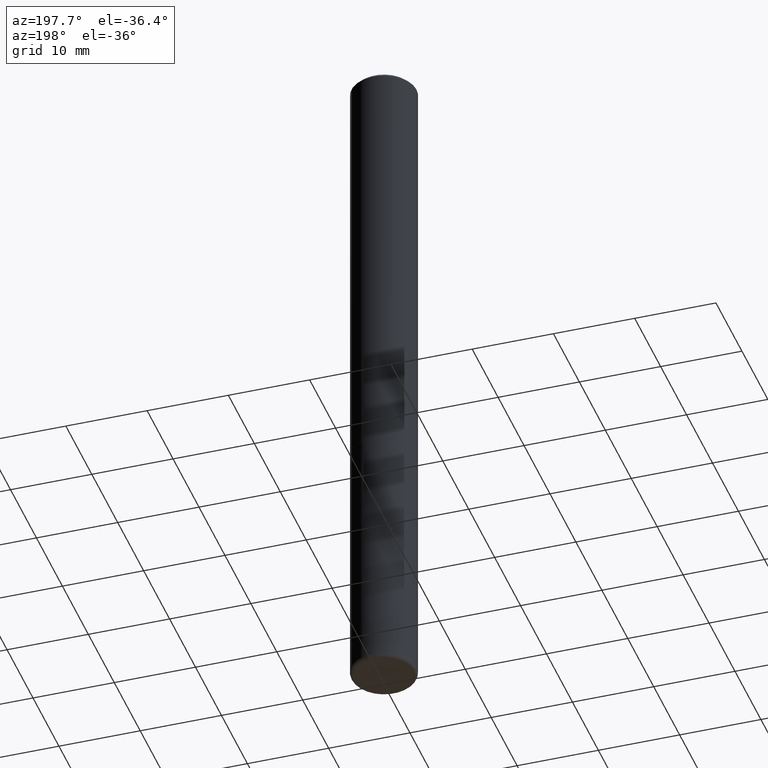
[diagram: clean part render]
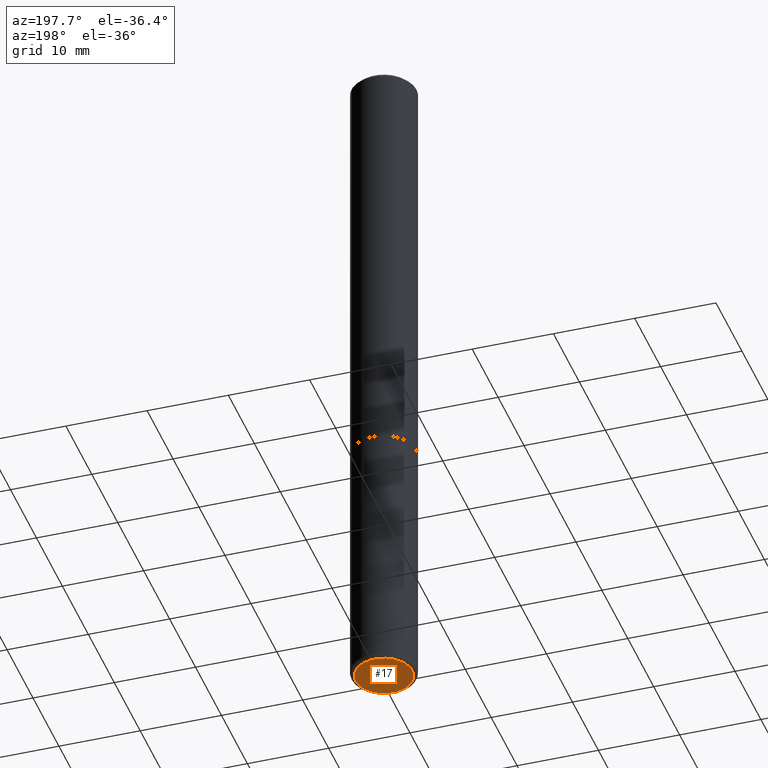
[diagram: same view with one face highlighted and labeled with its STEP entity id]
A machine part, auxiliary view. The second image highlights one B-rep face of the part: STEP entity #17.
In plain terms, the highlighted planar face has unit normal (0, -0, -1).
Its self-contained STEP definition (entity closure, byte-faithful):
#10 = DIRECTION ( 'NONE',  ( -2.445468806185136597E-29, 3.491481338843145583E-15, 1.000000000000000000 ) ) ;
#13 = VERTEX_POINT ( 'NONE', #305 ) ;
#16 = ORIENTED_EDGE ( 'NONE', *, *, #210, .F. ) ;
#17 = ADVANCED_FACE ( 'NONE', ( #47 ), #177, .T. ) ;
#47 = FACE_OUTER_BOUND ( 'NONE', #364, .T. ) ;
#124 = DIRECTION ( 'NONE',  ( -2.445468806185136597E-29, 3.491481338843145583E-15, 1.000000000000000000 ) ) ;
#130 = DIRECTION ( 'NONE',  ( 1.000000000000000000, -6.982962677686265922E-15, 0.000000000000000000 ) ) ;
#147 = CIRCLE ( 'NONE', #352, 0.1378000000000000058 ) ;
#149 = DIRECTION ( 'NONE',  ( -1.000000000000000000, 6.982962677686265922E-15, -4.876176775795935793E-29 ) ) ;
#177 = PLANE ( 'NONE',  #235 ) ;
#182 = DIRECTION ( 'NONE',  ( 1.000000000000000000, -6.982962677686265922E-15, 0.000000000000000000 ) ) ;
#183 = CIRCLE ( 'NONE', #193, 0.1378000000000000058 ) ;
#192 = CARTESIAN_POINT ( 'NONE',  ( 0.1378000000000000058, -1.264649455742375392E-14, -3.346499999999999808 ) ) ;
#193 = AXIS2_PLACEMENT_3D ( 'NONE', #354, #10, #130 ) ;
#210 = EDGE_CURVE ( 'NONE', #13, #337, #147, .T. ) ;
#235 = AXIS2_PLACEMENT_3D ( 'NONE', #407, #369, #149 ) ;
#254 = CARTESIAN_POINT ( 'NONE',  ( 8.183761359898559783E-29, -1.168424230043858645E-14, -3.346499999999999808 ) ) ;
#278 = ORIENTED_EDGE ( 'NONE', *, *, #289, .F. ) ;
#289 = EDGE_CURVE ( 'NONE', #337, #13, #183, .T. ) ;
#305 = CARTESIAN_POINT ( 'NONE',  ( -0.1378000000000000058, -1.060073485990119567E-14, -3.346499999999999808 ) ) ;
#337 = VERTEX_POINT ( 'NONE', #192 ) ;
#352 = AXIS2_PLACEMENT_3D ( 'NONE', #254, #124, #182 ) ;
#354 = CARTESIAN_POINT ( 'NONE',  ( 8.183761359898559783E-29, -1.168424230043858645E-14, -3.346499999999999808 ) ) ;
#364 = EDGE_LOOP ( 'NONE', ( #278, #16 ) ) ;
#369 = DIRECTION ( 'NONE',  ( 2.438088387897960049E-29, -3.491481338843145188E-15, -1.000000000000000000 ) ) ;
#407 = CARTESIAN_POINT ( 'NONE',  ( 8.183761359898559783E-29, -1.168424230043858645E-14, -3.346499999999999808 ) ) ;